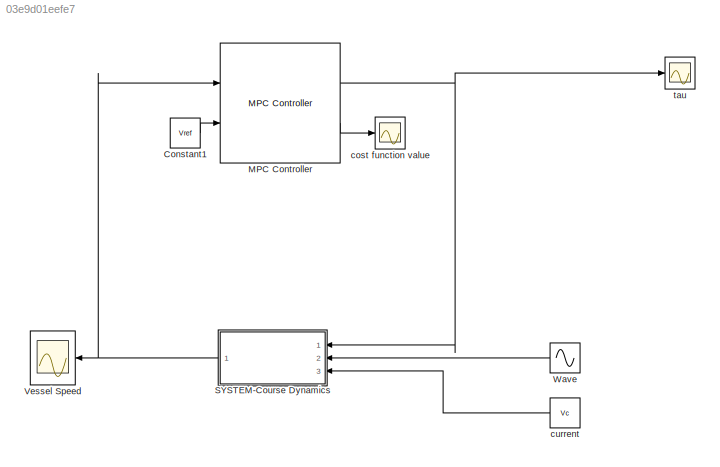
MODEL slx_03e9d01eefe7
KIND model
CONFIG AbsTol = auto
CONFIG EnableMultiTasking = off
CONFIG FixedStep = auto
CONFIG MaxStep = auto
CONFIG MinStep = auto
CONFIG RelTol = 1e-3
CONFIG SampleTimeConstraint = Unconstrained
CONFIG Solver = VariableStepAuto
CONFIG SolverName = VariableStepAuto
CONFIG StartTime = 0.0
CONFIG StopTime = 100
BLOCK [Sin]  Wave
  Amplitude = tau_wave_amp
  Frequency = tau_wave_freq
  Ports = [0, 1]
  SampleTime = 0
BLOCK [Constant] Constant1
  Value = Vref
BLOCK [Reference] MPC Controller  REF=mpclib/MPC Controller  (lib defined in mdl_ae329e0e0455)
  Ports = [2, 2]
  SCDEnableBlockLinearizationSpecification = on
  SourceBlock = mpclib/MPC Controller
  SourceProductBaseCode = MP
  SourceType = MPC
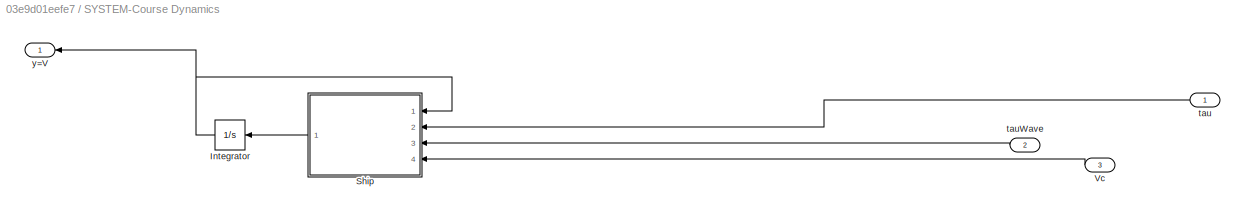
BLOCK [SubSystem] SYSTEM-Course Dynamics
  Ports = [3, 1]
  RequestExecContextInheritance = off
BLOCK [Integrator] SYSTEM-Course Dynamics/Integrator
  Ports = [1, 1]
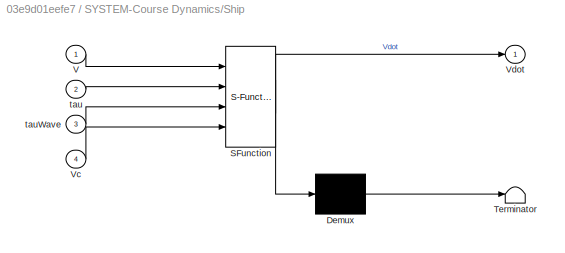
BLOCK [SubSystem] SYSTEM-Course Dynamics/Ship
  ErrorFcn = Stateflow.Translate.translate
  PermitHierarchicalResolution = ExplicitOnly
  Ports = [4, 1]
  RequestExecContextInheritance = off
  SFBlockType = MATLAB Function
  TreatAsAtomicUnit = on
BLOCK [Demux] SYSTEM-Course Dynamics/Ship/ Demux 
  Outputs = 1
  Ports = [1, 1]
BLOCK [S-Function] SYSTEM-Course Dynamics/Ship/ SFunction 
  EnableBusSupport = on
  FunctionName = sf_sfun
  PortCounts = [4 2]
  Ports = [4, 2]
  SFcnIsStateOwnerBlock = off
  SFunctionDeploymentMode = off
  Tag = Stateflow S-Function 2
BLOCK [Terminator] SYSTEM-Course Dynamics/Ship/ Terminator 
BLOCK [Inport] SYSTEM-Course Dynamics/Ship/V
BLOCK [Inport] SYSTEM-Course Dynamics/Ship/Vc
  Port = 4
BLOCK [Outport] SYSTEM-Course Dynamics/Ship/Vdot
  VectorParamsAs1DForOutWhenUnconnected = off
BLOCK [Inport] SYSTEM-Course Dynamics/Ship/tau
  Port = 2
BLOCK [Inport] SYSTEM-Course Dynamics/Ship/tauWave
  Port = 3
BLOCK [Inport] SYSTEM-Course Dynamics/Vc
  Port = 3
BLOCK [Inport] SYSTEM-Course Dynamics/tau
BLOCK [Inport] SYSTEM-Course Dynamics/tauWave
  Port = 2
BLOCK [Outport] SYSTEM-Course Dynamics/y=V
BLOCK [Scope] Vessel Speed
  Floating = off
  NumInputPorts = 1
  Ports = [1]
  ScopeSpecificationString = Simulink.scopes.TimeScopeBlockCfg('CurrentConfiguration', extmgr.ConfigurationSet(extmgr.Configuration('Core','General UI',true),extmgr.Configuration('Core','Source UI',true),extmgr.Configuration('Sources','WiredSimulink',true,'DataLoggingVariableName','ScopeData1'),extmgr.Configuration('Visuals','Time Domain',true,'SerializedDisplays',{struct('MinYLimReal','-0.01248','MaxYLimReal','0.1123','YLabe...<+1449ch>
BLOCK [Scope] cost function value
  Floating = off
  NumInputPorts = 1
  Ports = [1]
  ScopeSpecificationString = Simulink.scopes.TimeScopeBlockCfg('CurrentConfiguration', extmgr.ConfigurationSet(extmgr.Configuration('Core','General UI',true),extmgr.Configuration('Core','Source UI',true),extmgr.Configuration('Sources','WiredSimulink',true,'DataLoggingVariableName','ScopeData2'),extmgr.Configuration('Visuals','Time Domain',true,'SerializedDisplays',{struct('MinYLimReal','-21.93893','MaxYLimReal','197.45041','Y...<+1388ch>
BLOCK [Constant] current
  Value = Vc
BLOCK [Scope] tau
  Floating = off
  NumInputPorts = 1
  Ports = [1]
  ScopeSpecificationString = Simulink.scopes.TimeScopeBlockCfg('CurrentConfiguration', extmgr.ConfigurationSet(extmgr.Configuration('Core','General UI',true),extmgr.Configuration('Core','Source UI',true),extmgr.Configuration('Sources','WiredSimulink',true,'DataLoggingVariableName','ScopeData5'),extmgr.Configuration('Visuals','Time Domain',true,'SerializedDisplays',{struct('MinYLimReal','-0.31332','MaxYLimReal','2.81984','YLab...<+1423ch>
LINE  Wave:1 -> SYSTEM-Course Dynamics:2
LINE Constant1:1 -> MPC Controller:2
NET MPC Controller:1 -> SYSTEM-Course Dynamics:1, tau:1
LINE MPC Controller:2 -> cost function value:1
NET SYSTEM-Course Dynamics/Integrator:1 -> SYSTEM-Course Dynamics/Ship:1, SYSTEM-Course Dynamics/y=V:1
LINE SYSTEM-Course Dynamics/Ship:1 -> SYSTEM-Course Dynamics/Integrator:1
LINE SYSTEM-Course Dynamics/Vc:1 -> SYSTEM-Course Dynamics/Ship:4
LINE SYSTEM-Course Dynamics/tau:1 -> SYSTEM-Course Dynamics/Ship:2
LINE SYSTEM-Course Dynamics/tauWave:1 -> SYSTEM-Course Dynamics/Ship:3
NET SYSTEM-Course Dynamics:1 -> MPC Controller:1, Vessel Speed:1
LINE current:1 -> SYSTEM-Course Dynamics:3
note: NET lines group one-source signal fan-out (src -> all destinations, sorted); 1:1 wires keep LINE
CHART SYSTEM-Course Dynamics/Ship states=1 transitions=1
  STATE_LABEL 'eML_blk_kernel()'
  STATE_LABEL 'SCRIPT:\nfunction Vdot = fcn(V,tau,tauWave,Vc)\n\nm=23.8;\nma=2;\n\nRs=-1.44;\n\n\nVdot = (1/(m+ma))*(Rs*(V-Vc)+tau+tauWave);\n'
CHART  states=0 transitions=0
